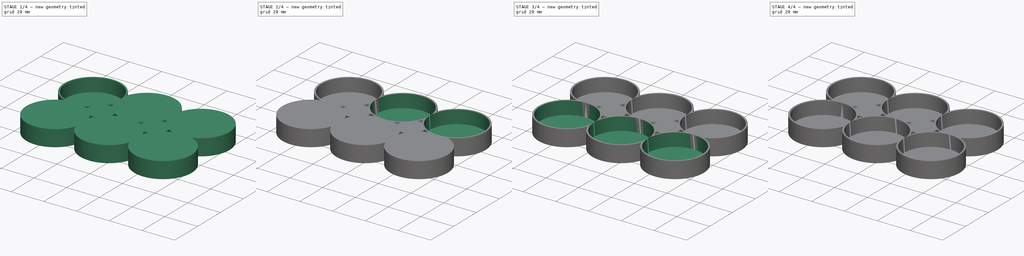
[diagram: build sequence overview — one tinted view per stage of 4, left to right]
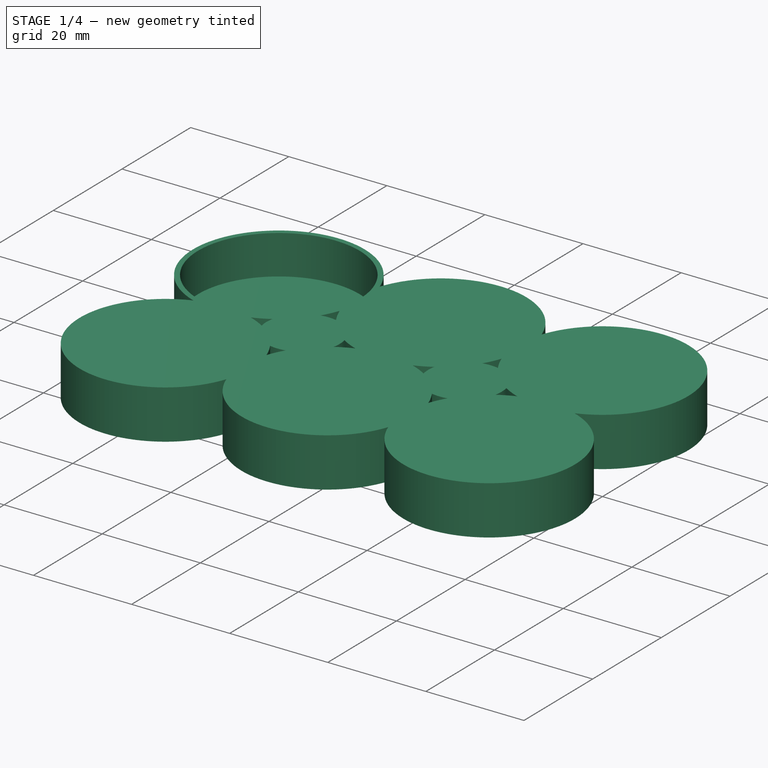
[diagram: stage 1 of 4 — iso view after this stage's code; geometry added in this stage tinted green]
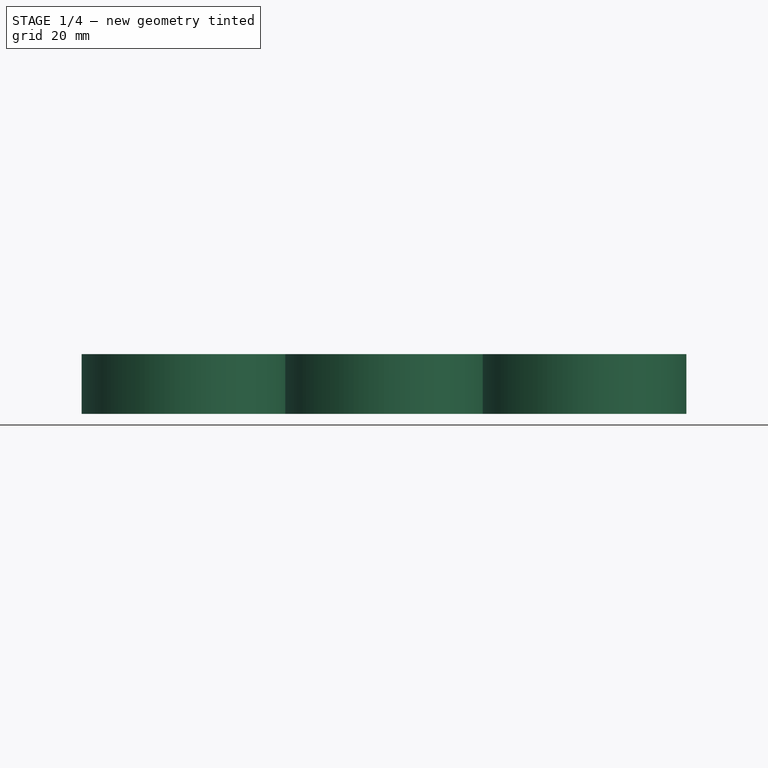
[diagram: stage 1 of 4 — front view after this stage's code; geometry added in this stage tinted green]
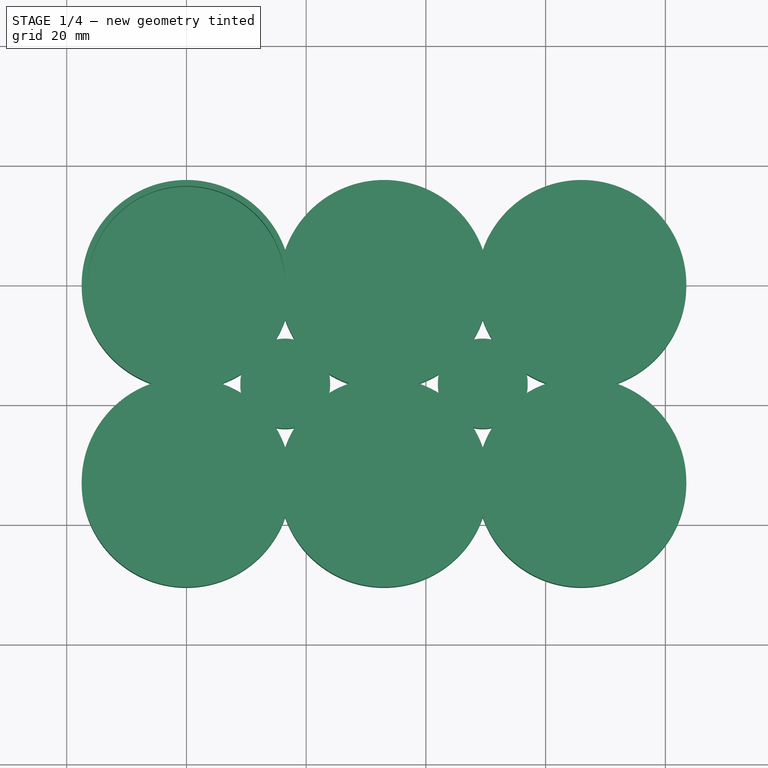
[diagram: stage 1 of 4 — top view after this stage's code; geometry added in this stage tinted green]
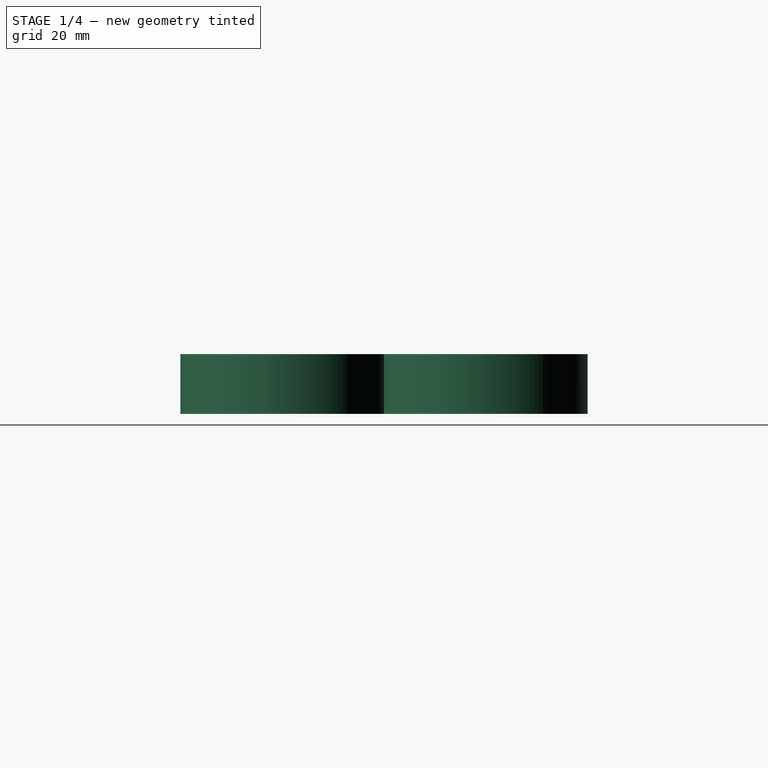
[diagram: stage 1 of 4 — right view after this stage's code; geometry added in this stage tinted green]
FCSTD DOCUMENT  (FreeCAD 0.20R29177 (Git))
Label: gw_paint
License: All rights reserved
LicenseURL: http://en.wikipedia.org/wiki/All_rights_reserved
objects: Sketcher::SketchObject×9, PartDesign::Pocket×8, PartDesign::Pad×1, PartDesign::Body×1
note: 28 computed .brp shape members not serialized (recipe doc carries the construction recipe); baked Part::Feature solids carry a one-line shape summary decoded from their .brp

FEATURE [Sketcher::SketchObject] Sketch
  FullyConstrained = true
  MapMode = 5
  Support = -> [XY_Plane]
  sketch-geometry (30):
    g0: ArcOfCircle CenterX=0 CenterY=0 CenterZ=0 NormalX=0 NormalY=0 NormalZ=1 AngleXU=0 Radius=17.5 StartAngle=5.05208 EndAngle=5.26405
    g1: ArcOfCircle CenterX=33 CenterY=0 CenterZ=0 NormalX=0 NormalY=0 NormalZ=1 AngleXU=0 Radius=17.5 StartAngle=5.73152 EndAngle=5.94349
    g2: ArcOfCircle CenterX=66 CenterY=0 CenterZ=0 NormalX=0 NormalY=0 NormalZ=1 AngleXU=0 Radius=17.5 StartAngle=5.05208 EndAngle=9.08509
    g3: ArcOfCircle CenterX=0 CenterY=-33 CenterZ=0 NormalX=0 NormalY=0 NormalZ=1 AngleXU=0 Radius=17.5 StartAngle=1.01914 EndAngle=1.2311
    g4: ArcOfCircle CenterX=33 CenterY=-33 CenterZ=0 NormalX=0 NormalY=0 NormalZ=1 AngleXU=0 Radius=17.5 StartAngle=2.58993 EndAngle=2.8019
    g5: ArcOfCircle CenterX=66 CenterY=-33 CenterZ=0 NormalX=0 NormalY=0 NormalZ=1 AngleXU=0 Radius=17.5 StartAngle=3.48129 EndAngle=7.51429
    g6: ArcOfCircle CenterX=16.5 CenterY=-16.5 CenterZ=0 NormalX=0 NormalY=0 NormalZ=1 AngleXU=0 Radius=7.5 StartAngle=4.49795 EndAngle=4.92683
    g7: ArcOfCircle CenterX=49.5 CenterY=-16.5 CenterZ=0 NormalX=0 NormalY=0 NormalZ=1 AngleXU=0 Radius=7.5 StartAngle=4.49795 EndAngle=4.92683
    g8: ArcOfCircle CenterX=0 CenterY=-33 CenterZ=0 NormalX=0 NormalY=0 NormalZ=1 AngleXU=0 Radius=17.5 StartAngle=1.91049 EndAngle=5.94349
    g9: ArcOfCircle CenterX=0 CenterY=0 CenterZ=0 NormalX=0 NormalY=0 NormalZ=1 AngleXU=0 Radius=17.5 StartAngle=5.73152 EndAngle=5.94349
    g10: ArcOfCircle CenterX=16.5 CenterY=-16.5 CenterZ=0 NormalX=0 NormalY=0 NormalZ=1 AngleXU=0 Radius=7.5 StartAngle=2.92715 EndAngle=3.35604
    g11: ArcOfCircle CenterX=16.5 CenterY=-16.5 CenterZ=0 NormalX=0 NormalY=0 NormalZ=1 AngleXU=0 Radius=7.5 StartAngle=6.06874 EndAngle=6.49763
    g12: ArcOfCircle CenterX=33 CenterY=-33 CenterZ=0 NormalX=0 NormalY=0 NormalZ=1 AngleXU=0 Radius=17.5 StartAngle=3.48129 EndAngle=5.94349
    g13: ArcOfCircle CenterX=0 CenterY=-33 CenterZ=0 NormalX=0 NormalY=0 NormalZ=1 AngleXU=0 Radius=17.5 StartAngle=0.339693 EndAngle=0.551661
    g14: ArcOfCircle CenterX=33 CenterY=-33 CenterZ=0 NormalX=0 NormalY=0 NormalZ=1 AngleXU=0 Radius=17.5 StartAngle=0.339693 EndAngle=0.551661
    g15: ArcOfCircle CenterX=33 CenterY=-33 CenterZ=0 NormalX=0 NormalY=0 NormalZ=1 AngleXU=0 Radius=17.5 StartAngle=1.01914 EndAngle=1.2311
    g16: ArcOfCircle CenterX=66 CenterY=-33 CenterZ=0 NormalX=0 NormalY=0 NormalZ=1 AngleXU=0 Radius=17.5 StartAngle=2.58993 EndAngle=2.8019
    g17: ArcOfCircle CenterX=49.5 CenterY=-16.5 CenterZ=0 NormalX=0 NormalY=0 NormalZ=1 AngleXU=0 Radius=7.5 StartAngle=6.06874 EndAngle=6.49763
    g18: ArcOfCircle CenterX=66 CenterY=-33 CenterZ=0 NormalX=0 NormalY=0 NormalZ=1 AngleXU=0 Radius=17.5 StartAngle=1.91049 EndAngle=2.12246
    g19: ArcOfCircle CenterX=49.5 CenterY=-16.5 CenterZ=0 NormalX=0 NormalY=0 NormalZ=1 AngleXU=0 Radius=7.5 StartAngle=1.35635 EndAngle=1.78524
    g20: ArcOfCircle CenterX=66 CenterY=0 CenterZ=0 NormalX=0 NormalY=0 NormalZ=1 AngleXU=0 Radius=17.5 StartAngle=4.16073 EndAngle=4.3727
    g21: ArcOfCircle CenterX=49.5 CenterY=-16.5 CenterZ=0 NormalX=0 NormalY=0 NormalZ=1 AngleXU=0 Radius=7.5 StartAngle=2.92715 EndAngle=3.35604
    g22: ArcOfCircle CenterX=33 CenterY=-33 CenterZ=0 NormalX=0 NormalY=0 NormalZ=1 AngleXU=0 Radius=17.5 StartAngle=1.91049 EndAngle=2.12246
    g23: ArcOfCircle CenterX=33 CenterY=0 CenterZ=0 NormalX=0 NormalY=0 NormalZ=1 AngleXU=0 Radius=17.5 StartAngle=5.05208 EndAngle=5.26405
    g24: ArcOfCircle CenterX=16.5 CenterY=-16.5 CenterZ=0 NormalX=0 NormalY=0 NormalZ=1 AngleXU=0 Radius=7.5 StartAngle=1.35635 EndAngle=1.78524
    g25: ArcOfCircle CenterX=33 CenterY=0 CenterZ=0 NormalX=0 NormalY=0 NormalZ=1 AngleXU=0 Radius=17.5 StartAngle=4.16073 EndAngle=4.3727
    g26: ArcOfCircle CenterX=0 CenterY=0 CenterZ=0 NormalX=0 NormalY=0 NormalZ=1 AngleXU=0 Radius=17.5 StartAngle=0.339693 EndAngle=4.3727
    g27: ArcOfCircle CenterX=33 CenterY=0 CenterZ=0 NormalX=0 NormalY=0 NormalZ=1 AngleXU=0 Radius=17.5 StartAngle=3.48129 EndAngle=3.69325
    g28: ArcOfCircle CenterX=66 CenterY=0 CenterZ=0 NormalX=0 NormalY=0 NormalZ=1 AngleXU=0 Radius=17.5 StartAngle=3.48129 EndAngle=3.69325
    g29: ArcOfCircle CenterX=33 CenterY=0 CenterZ=0 NormalX=0 NormalY=0 NormalZ=1 AngleXU=0 Radius=17.5 StartAngle=0.339693 EndAngle=2.8019
  constraints (97):
    c: Coincident(g0,g-1)
    c: Diameter(g0) = 35
    c: PointOnObject(g1,g-1)
    c: PointOnObject(g2,g-1)
    c: Diameter(g1) = 35
    c: Diameter(g2) = 35
    c: Diameter(g3) = 35
    c: Diameter(g4) = 35
    c: Diameter(g5) = 35
    c: DistanceX(g0,g1) = 33
    c: DistanceY(g3,g0) = 33
    c: DistanceY(g4,g3) = 0
    c: DistanceX(g1,g4) = 0
    c: DistanceX(g1,g2) = 33
    c: DistanceY(g5,g4) = 0
    c: DistanceX(g2,g5) = 0
    c: Diameter(g6) = 15
    c: DistanceY(g6,g0) = 16.5
    c: DistanceX(g0,g6) = 16.5
    c: Diameter(g7) = 15
    c: DistanceX(g6,g7) = 33
    c: DistanceY(g6,g7) = 0
    c: DistanceX(g0,g3) = 0
    c: Coincident(g13,g6)
    c: Coincident(g3,g10)
    c: Equal(g3,g8)
    c: Coincident(g3,g8)
    c: Coincident(g26,g8)
    c: Coincident(g0,g3)
    c: Equal(g0,g9)
    c: Coincident(g0,g9)
    c: Equal(g6,g10)
    c: Coincident(g24,g9)
    c: Coincident(g10,g0)
    c: Coincident(g6,g10)
    c: Equal(g6,g11)
    c: Coincident(g6,g4)
    c: Coincident(g11,g22)
    c: Coincident(g6,g11)
    c: Equal(g4,g12)
    c: Coincident(g4,g12)
    c: Equal(g8,g13)
    c: Coincident(g8,g12)
    c: Coincident(g13,g4)
    c: Coincident(g8,g13)
    c: Equal(g12,g14)
    c: Coincident(g12,g5)
    c: Coincident(g14,g16)
    c: Coincident(g12,g14)
    c: Equal(g14,g15)
    c: Coincident(g14,g15)
    c: Coincident(g21,g15)
    c: Coincident(g7,g14)
    c: Equal(g5,g16)
    c: Coincident(g5,g16)
    c: Equal(g7,g17)
    c: Coincident(g7,g16)
    c: Coincident(g17,g18)
    c: Coincident(g7,g17)
    c: Equal(g5,g18)
    c: Coincident(g5,g2)
    c: Coincident(g18,g20)
    c: Coincident(g5,g18)
    c: Equal(g17,g19)
    c: Coincident(g17,g19)
    c: Equal(g2,g20)
    c: Coincident(g28,g19)
    c: Coincident(g20,g17)
    c: Coincident(g2,g20)
    c: Equal(g19,g21)
    c: Coincident(g19,g1)
    c: Coincident(g21,g23)
    c: Coincident(g19,g21)
    c: Equal(g15,g22)
    c: Coincident(g15,g22)
    c: Equal(g1,g23)
    c: Coincident(g25,g22)
    c: Coincident(g23,g15)
    c: Coincident(g1,g23)
    c: Equal(g11,g24)
    c: Coincident(g11,g24)
    c: Equal(g1,g25)
    c: Coincident(g27,g24)
    c: Coincident(g25,g11)
    c: Coincident(g1,g25)
    c: Equal(g9,g26)
    c: Coincident(g9,g26)
    c: Equal(g1,g27)
    c: Coincident(g29,g26)
    c: Coincident(g27,g9)
    c: Coincident(g1,g27)
    c: Equal(g2,g28)
    c: Coincident(g2,g28)
    c: Equal(g1,g29)
    c: Coincident(g1,g28)
    c: Coincident(g29,g2)
    c: Coincident(g1,g29)
FEATURE [PartDesign::Pad] Pad
  Direction = (0,0,1)
  Length = 10
  Length2 = 10
  Profile = -> Sketch
  ReferenceAxis = -> Sketch [N_Axis]
  Type = 0
FEATURE [Sketcher::SketchObject] Sketch001
  FullyConstrained = true
  MapMode = 5
  Placement = pos=(0,0,10) rot=(0,0,1;0rad)
  Support = -> [Pad]
  sketch-geometry (1):
    g0: Circle CenterX=0 CenterY=0 CenterZ=0 NormalX=0 NormalY=0 NormalZ=1 AngleXU=0 Radius=16.5
  constraints (2):
    c: Coincident(g0,g-1)
    c: Diameter(g0) = 33
FEATURE [PartDesign::Pocket] Pocket
  BaseFeature = -> Pad
  Direction = (0,0,-1)
  Length = 8
  Length2 = 5
  Profile = -> Sketch001
  ReferenceAxis = -> Sketch001 [N_Axis]
  Type = 0
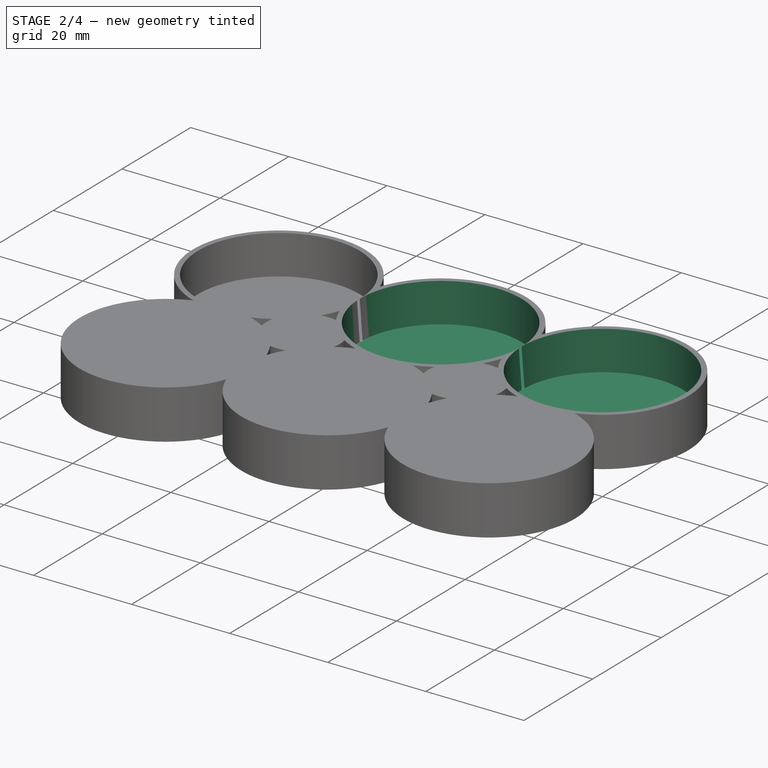
[diagram: stage 2 of 4 — iso view after this stage's code; geometry added in this stage tinted green]
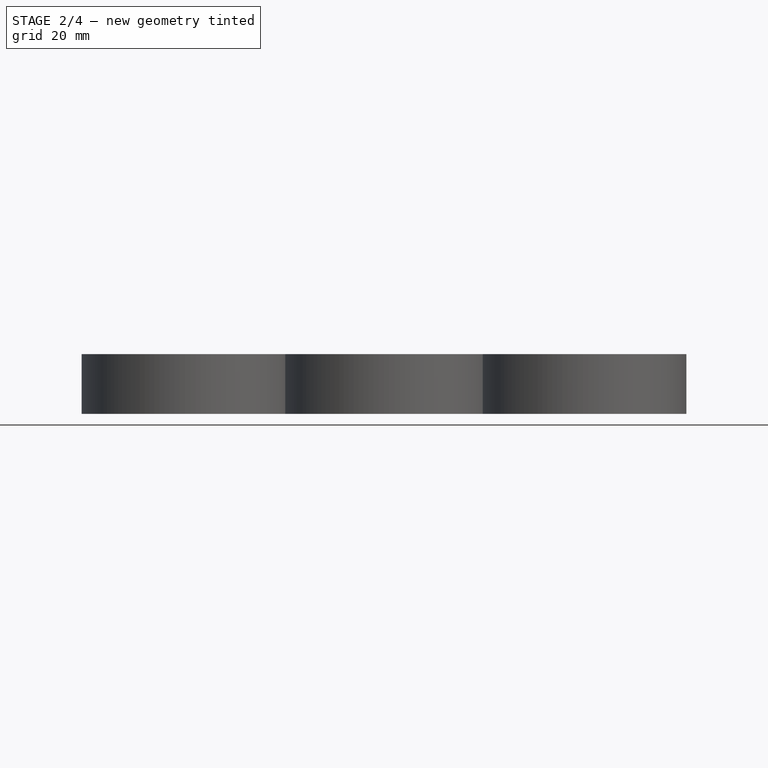
[diagram: stage 2 of 4 — front view after this stage's code; geometry added in this stage tinted green]
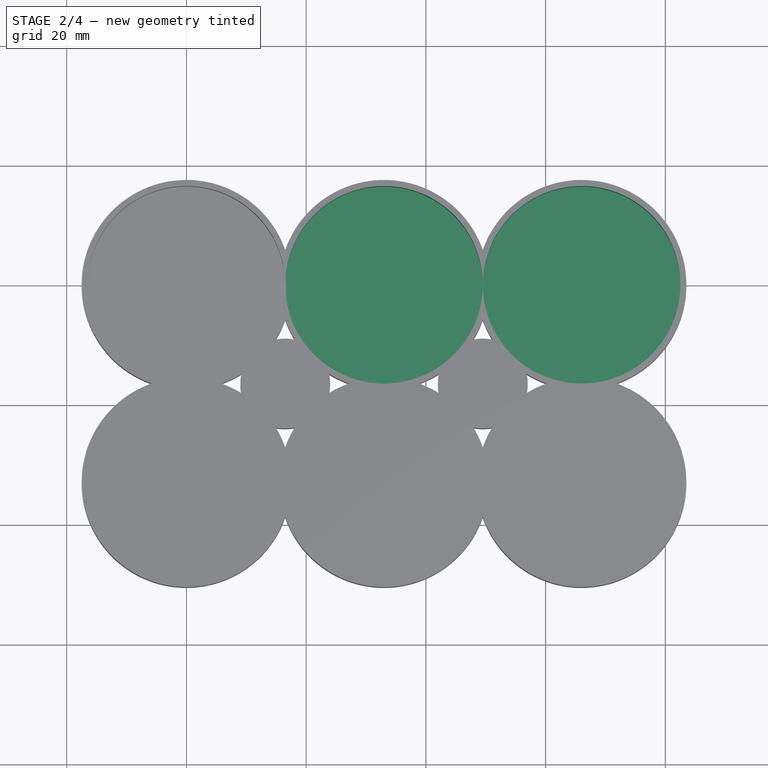
[diagram: stage 2 of 4 — top view after this stage's code; geometry added in this stage tinted green]
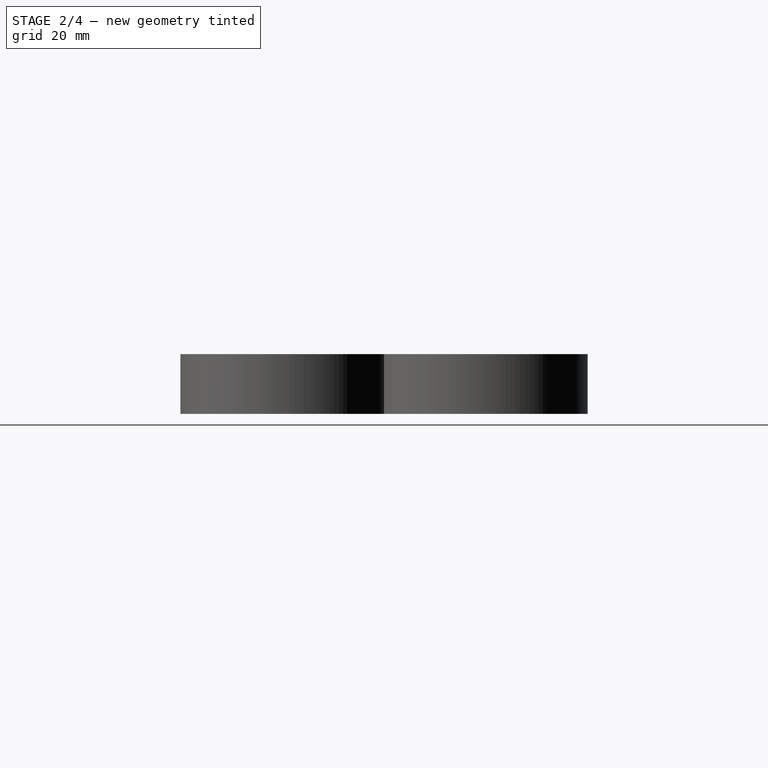
[diagram: stage 2 of 4 — right view after this stage's code; geometry added in this stage tinted green]
FEATURE [Sketcher::SketchObject] Sketch002
  FullyConstrained = true
  MapMode = 5
  Placement = pos=(0,0,10) rot=(0,0,1;0rad)
  Support = -> [Pocket]
  sketch-geometry (1):
    g0: Circle CenterX=33 CenterY=0 CenterZ=0 NormalX=0 NormalY=0 NormalZ=1 AngleXU=0 Radius=16.5
  constraints (3):
    c: PointOnObject(g0,g-1)
    c: Diameter(g0) = 33
    c: DistanceX(g-1,g0) = 33
FEATURE [PartDesign::Pocket] Pocket001
  BaseFeature = -> Pocket
  Direction = (0,0,-1)
  Length = 8
  Length2 = 5
  Profile = -> Sketch002
  ReferenceAxis = -> Sketch002 [N_Axis]
  Type = 0
FEATURE [Sketcher::SketchObject] Sketch003
  FullyConstrained = true
  MapMode = 5
  Placement = pos=(0,0,10) rot=(0,0,1;0rad)
  Support = -> [Pocket001]
  sketch-geometry (1):
    g0: Circle CenterX=66 CenterY=0 CenterZ=0 NormalX=0 NormalY=0 NormalZ=1 AngleXU=0 Radius=16.5
  constraints (3):
    c: PointOnObject(g0,g-1)
    c: Diameter(g0) = 33
    c: DistanceX(g-1,g0) = 66
FEATURE [PartDesign::Pocket] Pocket002
  BaseFeature = -> Pocket001
  Direction = (0,0,-1)
  Length = 8
  Length2 = 5
  Profile = -> Sketch003
  ReferenceAxis = -> Sketch003 [N_Axis]
  Type = 0
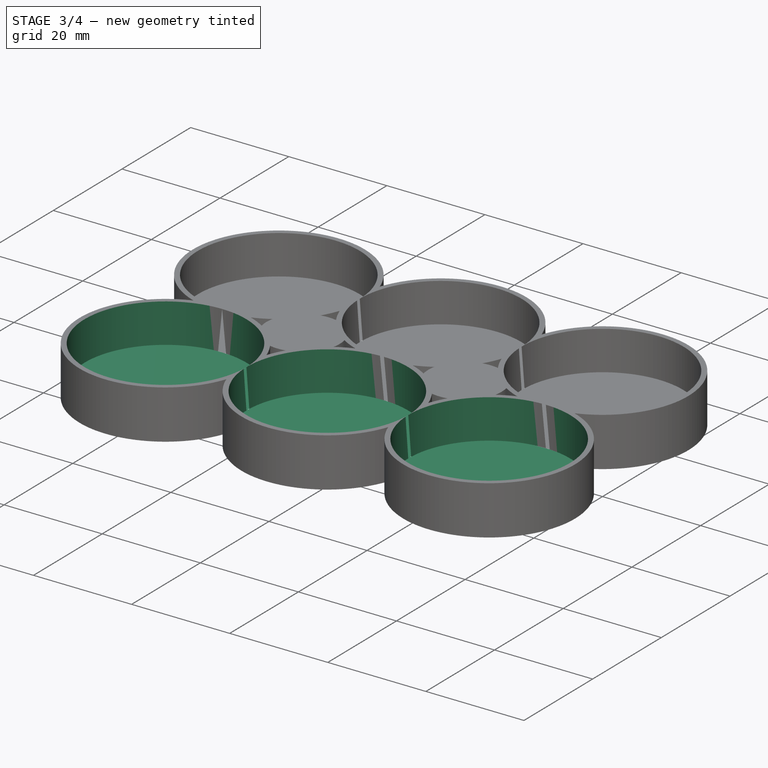
[diagram: stage 3 of 4 — iso view after this stage's code; geometry added in this stage tinted green]
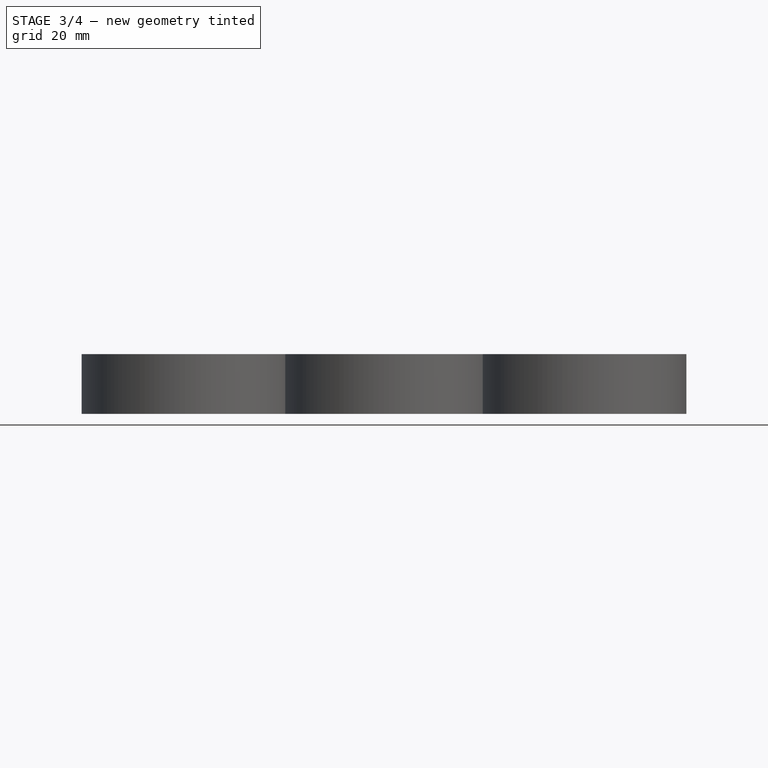
[diagram: stage 3 of 4 — front view after this stage's code; geometry added in this stage tinted green]
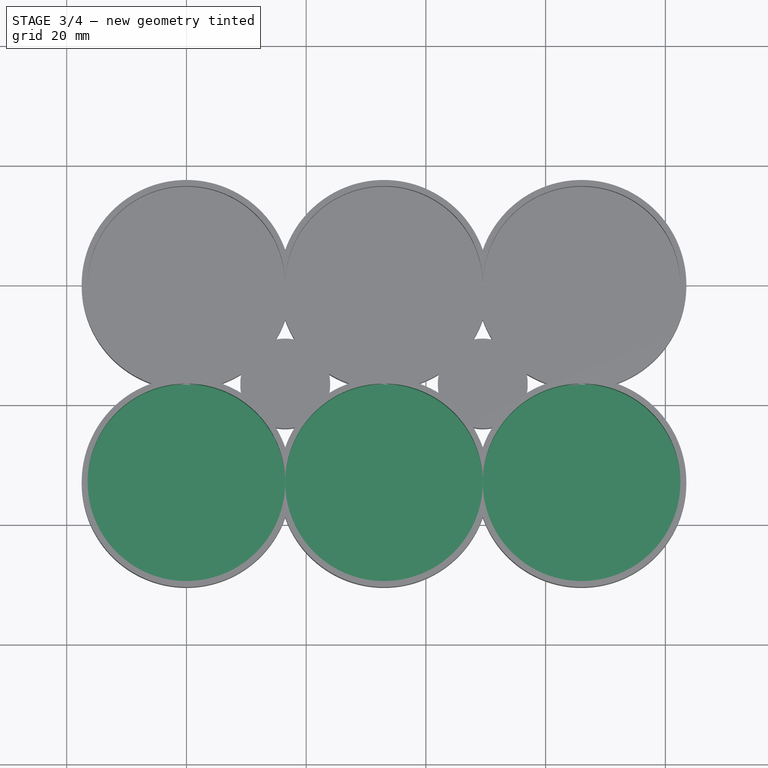
[diagram: stage 3 of 4 — top view after this stage's code; geometry added in this stage tinted green]
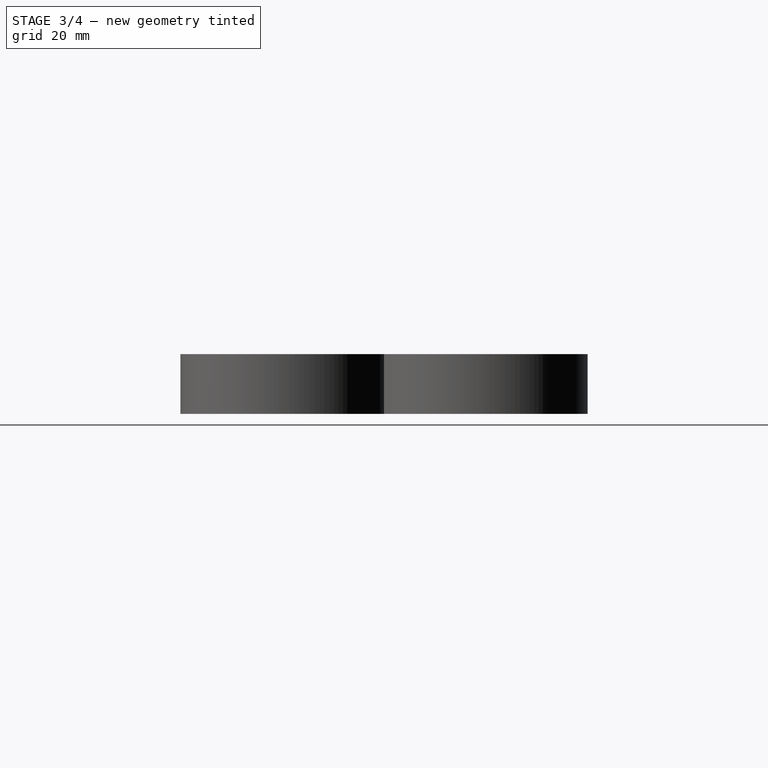
[diagram: stage 3 of 4 — right view after this stage's code; geometry added in this stage tinted green]
FEATURE [Sketcher::SketchObject] Sketch004
  FullyConstrained = true
  MapMode = 5
  Placement = pos=(0,0,10) rot=(0,0,1;0rad)
  Support = -> [Pocket002]
  sketch-geometry (1):
    g0: Circle CenterX=0 CenterY=-33 CenterZ=0 NormalX=0 NormalY=0 NormalZ=1 AngleXU=0 Radius=16.5
  constraints (3):
    c: PointOnObject(g0,g-2)
    c: Diameter(g0) = 33
    c: DistanceY(g0,g-1) = 33
FEATURE [PartDesign::Pocket] Pocket003
  BaseFeature = -> Pocket002
  Direction = (0,0,-1)
  Length = 8
  Length2 = 5
  Profile = -> Sketch004
  ReferenceAxis = -> Sketch004 [N_Axis]
  Type = 0
FEATURE [Sketcher::SketchObject] Sketch005
  FullyConstrained = true
  MapMode = 5
  Placement = pos=(0,0,10) rot=(0,0,1;0rad)
  Support = -> [Pocket003]
  sketch-geometry (1):
    g0: Circle CenterX=33 CenterY=-33 CenterZ=0 NormalX=0 NormalY=0 NormalZ=1 AngleXU=0 Radius=16.5
  constraints (3):
    c: Diameter(g0) = 33
    c: DistanceX(g-1,g0) = 33
    c: DistanceY(g0,g-1) = 33
FEATURE [PartDesign::Pocket] Pocket004
  BaseFeature = -> Pocket003
  Direction = (0,0,-1)
  Length = 8
  Length2 = 5
  Profile = -> Sketch005
  ReferenceAxis = -> Sketch005 [N_Axis]
  Type = 0
FEATURE [Sketcher::SketchObject] Sketch006
  FullyConstrained = true
  MapMode = 5
  Placement = pos=(0,0,10) rot=(0,0,1;0rad)
  Support = -> [Pocket004]
  sketch-geometry (1):
    g0: Circle CenterX=66 CenterY=-33 CenterZ=0 NormalX=0 NormalY=0 NormalZ=1 AngleXU=0 Radius=16.5
  constraints (3):
    c: Diameter(g0) = 33
    c: DistanceX(g-1,g0) = 66
    c: DistanceY(g0,g-1) = 33
FEATURE [PartDesign::Pocket] Pocket005
  BaseFeature = -> Pocket004
  Direction = (0,0,-1)
  Length = 8
  Length2 = 5
  Profile = -> Sketch006
  ReferenceAxis = -> Sketch006 [N_Axis]
  Type = 0
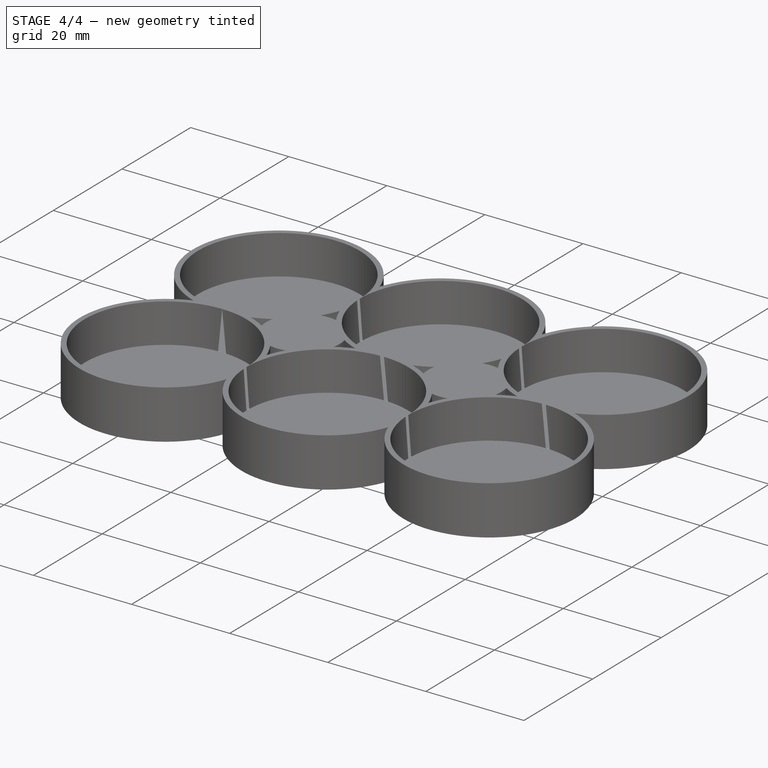
[diagram: stage 4 of 4 — iso view after this stage's code; geometry added in this stage tinted green]
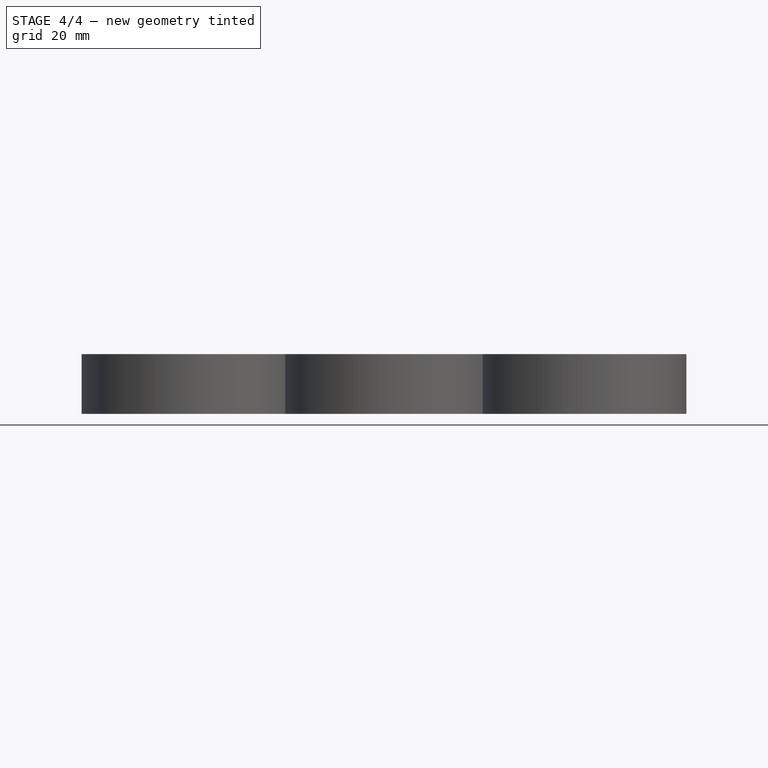
[diagram: stage 4 of 4 — front view after this stage's code; geometry added in this stage tinted green]
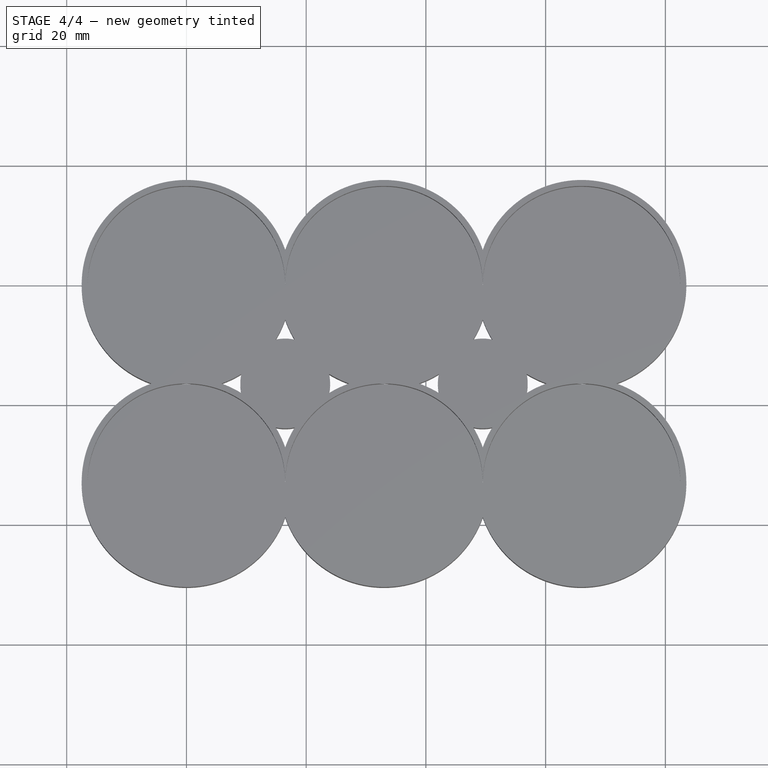
[diagram: stage 4 of 4 — top view after this stage's code; geometry added in this stage tinted green]
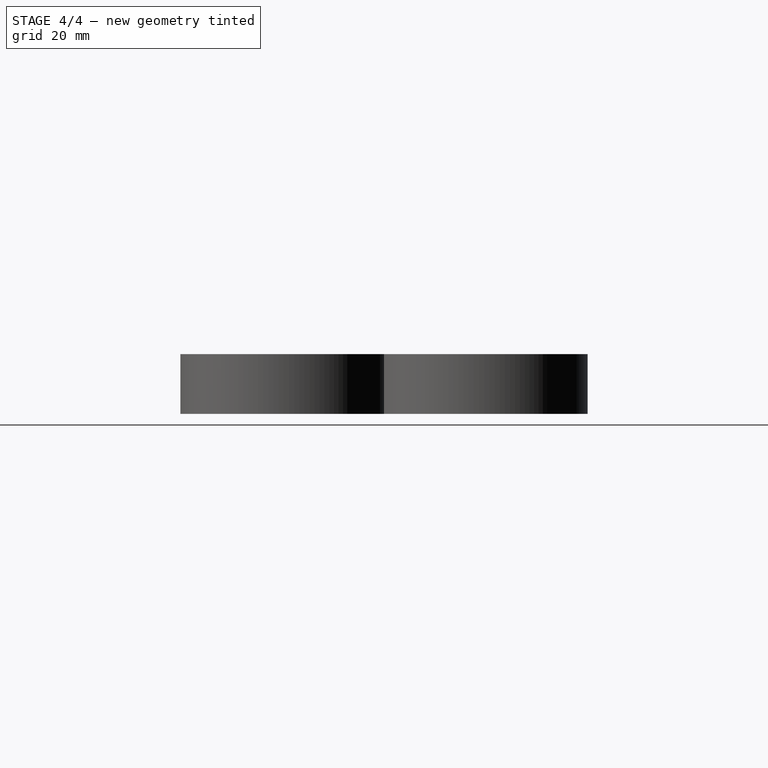
[diagram: stage 4 of 4 — right view after this stage's code; geometry added in this stage tinted green]
FEATURE [Sketcher::SketchObject] Sketch007
  FullyConstrained = true
  MapMode = 5
  Placement = pos=(0,0,0) rot=(1,0,0;3.14159rad)
  Support = -> [Pocket005]
  sketch-geometry (1):
    g0: Circle CenterX=16.5 CenterY=16.5 CenterZ=0 NormalX=0 NormalY=0 NormalZ=1 AngleXU=0 Radius=5.125
  constraints (3):
    c: DistanceX(g-1,g0) = 16.5
    c: DistanceY(g-1,g0) = 16.5
    c: Diameter(g0) = 10.25
FEATURE [PartDesign::Pocket] Pocket006
  BaseFeature = -> Pocket005
  Direction = (0,0,1)
  Length = 1.15
  Length2 = 5
  Profile = -> Sketch007
  ReferenceAxis = -> Sketch007 [N_Axis]
  Type = 0
FEATURE [Sketcher::SketchObject] Sketch008
  FullyConstrained = true
  MapMode = 5
  Placement = pos=(0,0,0) rot=(1,0,0;3.14159rad)
  Support = -> [Pocket006]
  sketch-geometry (1):
    g0: Circle CenterX=49.5 CenterY=16.5 CenterZ=0 NormalX=0 NormalY=0 NormalZ=1 AngleXU=0 Radius=5.125
  constraints (3):
    c: DistanceX(g-1,g0) = 49.5
    c: DistanceY(g-1,g0) = 16.5
    c: Diameter(g0) = 10.25
FEATURE [PartDesign::Pocket] Pocket007
  BaseFeature = -> Pocket006
  Direction = (0,0,1)
  Length = 1.15
  Length2 = 5
  Profile = -> Sketch008
  ReferenceAxis = -> Sketch008 [N_Axis]
  Type = 0
FEATURE [PartDesign::Body] Body
  Group = -> [Sketch,Pad,Sketch001,Pocket,Sketch002,Pocket001,Sketch003,Pocket002,Sketch004,Pocket003,Sketch005,Pocket004,Sketch006,Pocket005,Sketch007,Pocket006,Sketch008,Pocket007]
  Origin = -> Origin
  Tip = -> Pocket007
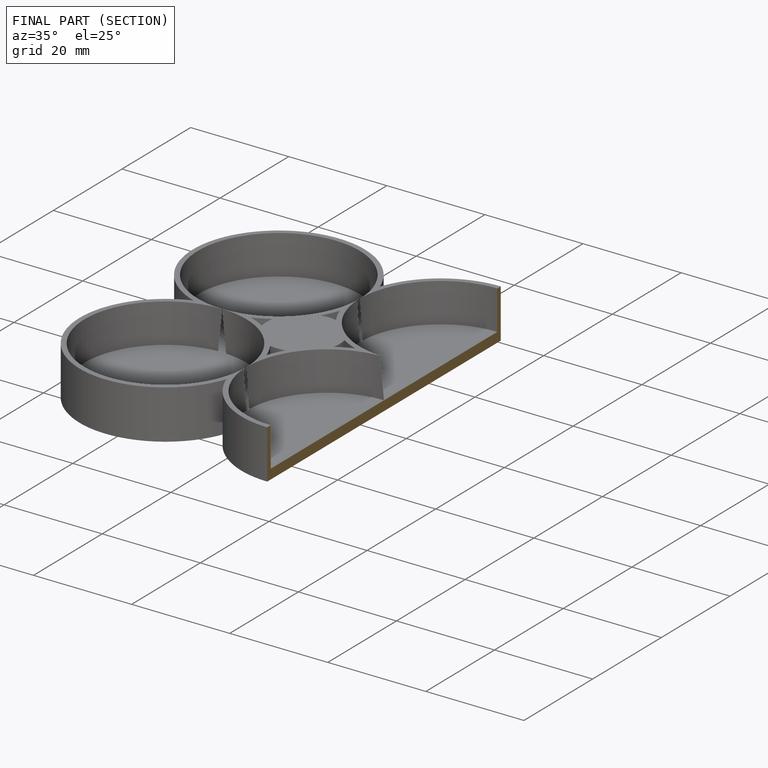
[diagram: finished part — half-section view (interior)]
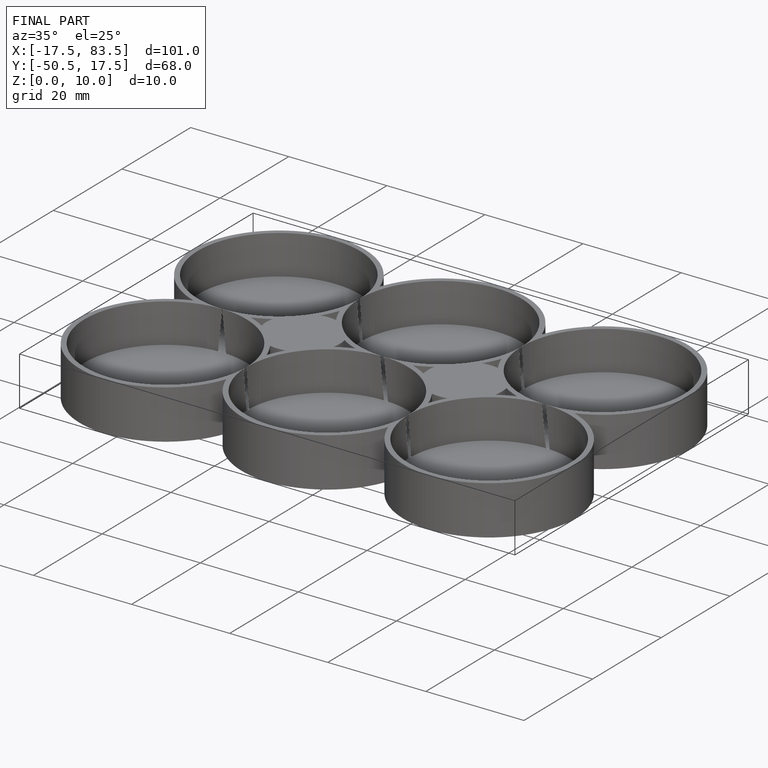
[diagram: finished part — iso view with bounding-box wireframe]
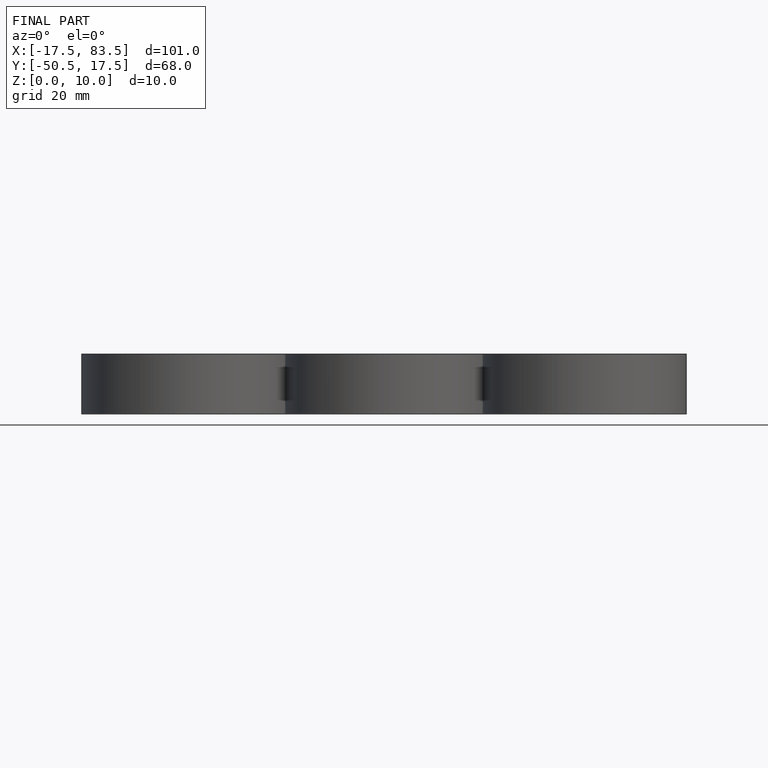
[diagram: finished part — front view with bounding-box wireframe]
